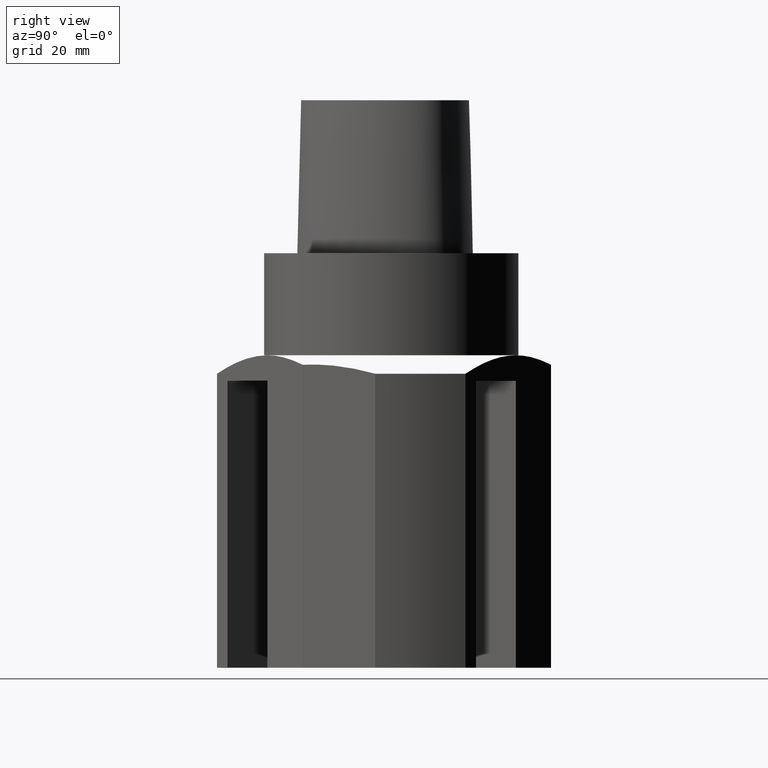
[diagram: clean part render]
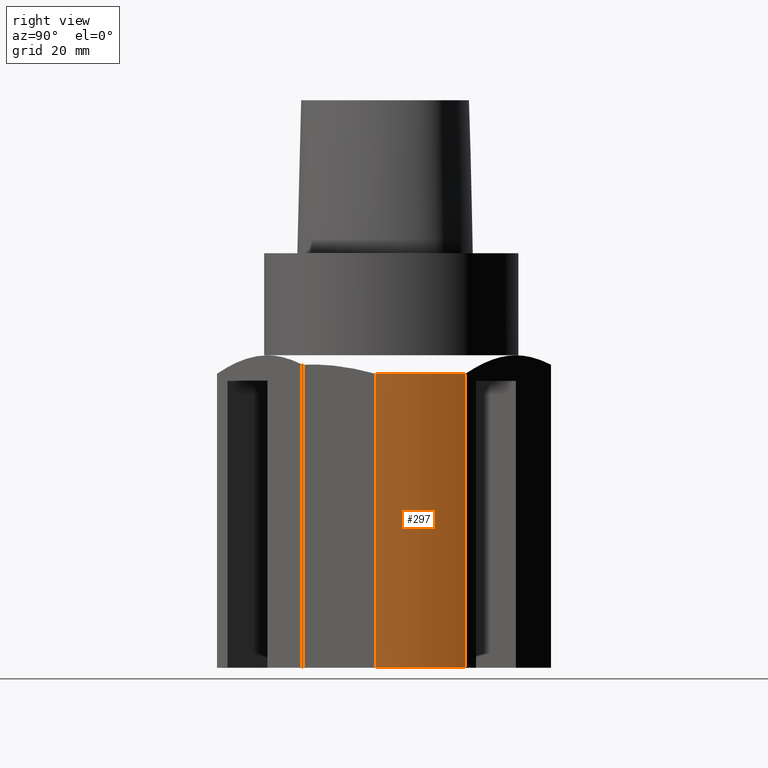
[diagram: same view with one face highlighted and labeled with its STEP entity id]
A machine part, right view. The second image highlights one B-rep face of the part: STEP entity #297.
In plain terms, the highlighted cylindrical surface (partial cylindrical patch) has radius 55 mm, axis along (0, 0, 1).
Its self-contained STEP definition (entity closure, byte-faithful):
#137=EDGE_CURVE('240[2]',#397,#398,#399,.F.);
#204=EDGE_CURVE('240[2]',#398,#498,#499,.F.);
#239=EDGE_CURVE('240[2]',#498,#546,#547,.T.);
#297=ADVANCED_FACE('240[2]',(#617),#618,.T.);
#339=EDGE_CURVE('240[2]',#397,#546,#666,.F.);
#397=VERTEX_POINT('',#739);
#398=VERTEX_POINT('',#740);
#399=CIRCLE('',#741,55.0);
#498=VERTEX_POINT('',#1625);
#499=LINE('',#1626,#1627);
#546=VERTEX_POINT('',#1746);
#547=CIRCLE('',#1747,55.0);
#617=FACE_OUTER_BOUND('',#1972,.T.);
#618=CYLINDRICAL_SURFACE('',#1973,55.0);
#666=LINE('',#2088,#2089);
#739=CARTESIAN_POINT('',(49.8861277533006,23.1597551321542,-130.0));
#740=CARTESIAN_POINT('',(54.7577092094039,-5.15686747341632,-130.0));
#741=AXIS2_PLACEMENT_3D('',#2192,#2193,#2194);
#1625=CARTESIAN_POINT('',(54.7577092094039,-5.15686747341633,-37.773505947032));
#1626=CARTESIAN_POINT('',(54.7577092094039,-5.15686747341634,-310.0));
#1627=VECTOR('',#2283,1.0);
#1746=CARTESIAN_POINT('',(49.8861277533006,23.1597551321543,-37.7735059470318));
#1747=AXIS2_PLACEMENT_3D('',#2331,#2332,#2333);
#1972=EDGE_LOOP('',(#2424,#2425,#2426,#2427));
#1973=AXIS2_PLACEMENT_3D('',#2428,#2429,#2430);
#2088=CARTESIAN_POINT('',(49.8861277533006,23.1597551321543,-310.0));
#2089=VECTOR('',#2482,1.0);
#2192=CARTESIAN_POINT('',(1.05726633527158E-013,-7.7376422166666E-013,-130.0));
#2193=DIRECTION('',(6.12323399573677E-017,1.22464679914735E-016,1.0));
#2194=DIRECTION('',(1.0,-2.44929359829471E-016,-6.12323399573677E-017));
#2283=DIRECTION('',(-6.12323399573677E-017,-1.22464679914735E-016,-1.0));
#2331=CARTESIAN_POINT('',(1.11373877564086E-013,-7.67386154620908E-013,-37.7735059470319));
#2332=DIRECTION('',(6.12323399573677E-017,1.22464679914735E-016,1.0));
#2333=DIRECTION('',(1.0,-2.44929359829471E-016,-6.12323399573677E-017));
#2424=ORIENTED_EDGE('',*,*,#339,.T.);
#2425=ORIENTED_EDGE('',*,*,#239,.F.);
#2426=ORIENTED_EDGE('',*,*,#204,.F.);
#2427=ORIENTED_EDGE('',*,*,#137,.F.);
#2428=CARTESIAN_POINT('',(9.4704812334832E-014,-7.95807864051312E-013,-310.0));
#2429=DIRECTION('',(6.12323399573677E-017,1.22464679914735E-016,1.0));
#2430=DIRECTION('',(1.0,-2.44929359829471E-016,-6.12323399573677E-017));
#2482=DIRECTION('',(-6.12323399573677E-017,-1.22464679914735E-016,-1.0));